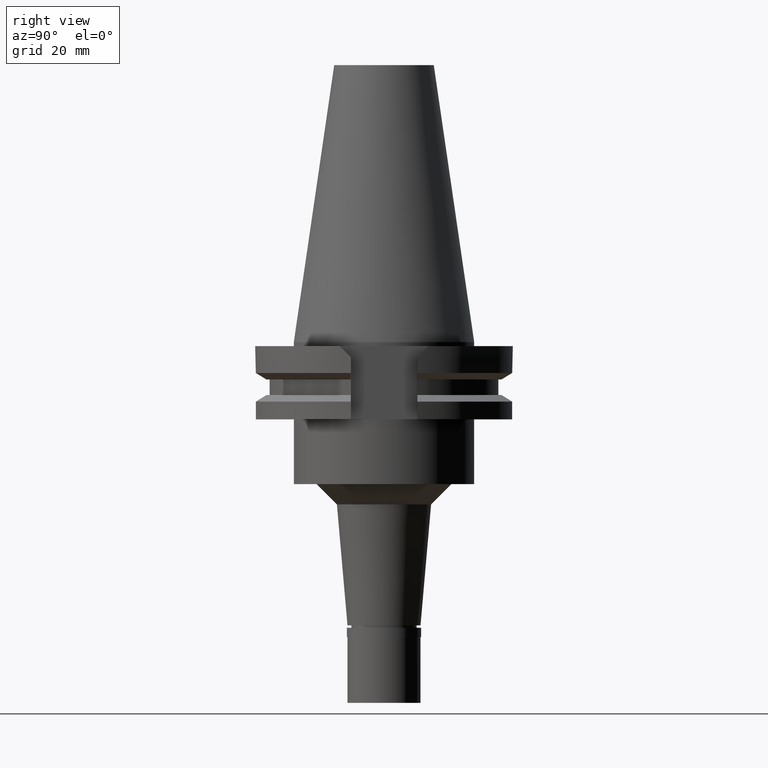
[diagram: clean part render]
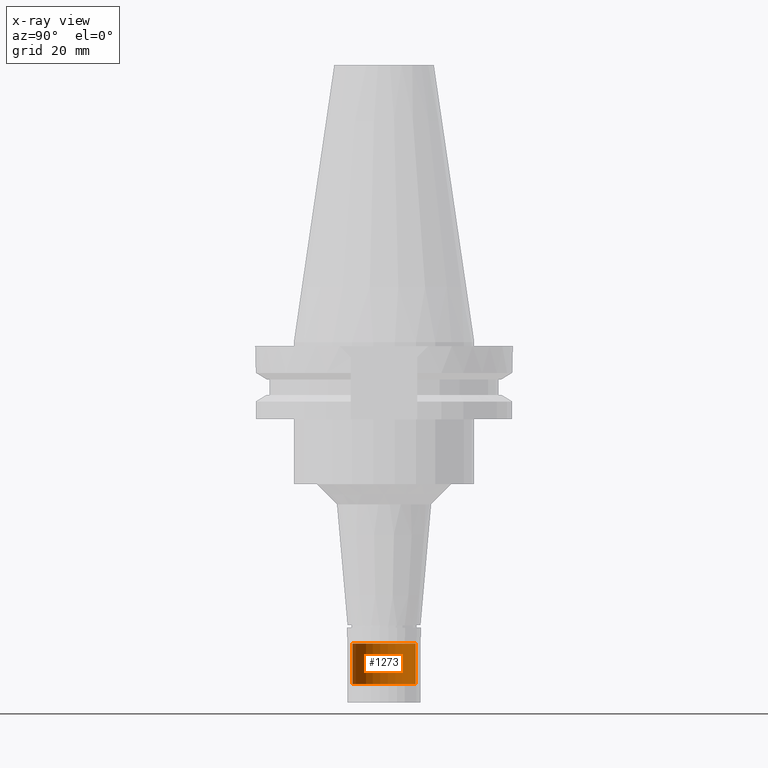
[diagram: x-ray — body ghosted, one internal face saturated and labeled with its STEP entity id]
A machine part, right view, then the same camera in x-ray: the body is ghosted and one INTERNAL B-rep face — a face not visible from any outside direction — is saturated and labeled: STEP entity #1273.
In plain terms, the highlighted cylindrical surface (edge-blend (fillet) strip) has radius 7.8 mm, axis along (0, 0, -1).
Its self-contained STEP definition (entity closure, byte-faithful):
#54 = DIRECTION ( 'NONE',  ( 0.0000000000000000000, -1.000000000000000000, 0.0000000000000000000 ) ) ;
#345 = EDGE_CURVE ( 'NONE', #1958, #1323, #2367, .T. ) ;
#425 = ORIENTED_EDGE ( 'NONE', *, *, #1432, .F. ) ;
#431 = CARTESIAN_POINT ( 'NONE',  ( 0.0000000000000000000, 7.799999999999999822, -74.30000000000001137 ) ) ;
#493 = ORIENTED_EDGE ( 'NONE', *, *, #650, .T. ) ;
#579 = DIRECTION ( 'NONE',  ( 0.0000000000000000000, 0.0000000000000000000, -1.000000000000000000 ) ) ;
#650 = EDGE_CURVE ( 'NONE', #949, #1094, #2679, .T. ) ;
#909 = DIRECTION ( 'NONE',  ( 0.0000000000000000000, 0.0000000000000000000, 1.000000000000000000 ) ) ;
#949 = VERTEX_POINT ( 'NONE', #2097 ) ;
#962 = AXIS2_PLACEMENT_3D ( 'NONE', #2633, #909, #3142 ) ;
#1094 = VERTEX_POINT ( 'NONE', #2857 ) ;
#1214 = CARTESIAN_POINT ( 'NONE',  ( 0.0000000000000000000, 2.153878174169999899E-14, 75.87749999999999773 ) ) ;
#1269 = LINE ( 'NONE', #3030, #1704 ) ;
#1273 = ADVANCED_FACE ( 'NONE', ( #2240 ), #1682, .T. ) ;
#1277 = AXIS2_PLACEMENT_3D ( 'NONE', #2996, #579, #54 ) ;
#1316 = EDGE_LOOP ( 'NONE', ( #3081, #425, #493, #2165 ) ) ;
#1323 = VERTEX_POINT ( 'NONE', #3167 ) ;
#1432 = EDGE_CURVE ( 'NONE', #949, #1323, #1269, .T. ) ;
#1457 = DIRECTION ( 'NONE',  ( 0.0000000000000000000, 0.0000000000000000000, -1.000000000000000000 ) ) ;
#1541 = CARTESIAN_POINT ( 'NONE',  ( 0.0000000000000000000, 7.799999999999999822, -84.29999999999999716 ) ) ;
#1682 = CYLINDRICAL_SURFACE ( 'NONE', #2937, 7.799999999999999822 ) ;
#1704 = VECTOR ( 'NONE', #2509, 1000.000000000000000 ) ;
#1958 = VERTEX_POINT ( 'NONE', #1541 ) ;
#2097 = CARTESIAN_POINT ( 'NONE',  ( 0.0000000000000000000, -7.799999999999999822, -74.30000000000001137 ) ) ;
#2165 = ORIENTED_EDGE ( 'NONE', *, *, #2605, .T. ) ;
#2218 = DIRECTION ( 'NONE',  ( 0.0000000000000000000, -1.000000000000000000, 0.0000000000000000000 ) ) ;
#2240 = FACE_OUTER_BOUND ( 'NONE', #1316, .T. ) ;
#2254 = VECTOR ( 'NONE', #3041, 1000.000000000000000 ) ;
#2367 = CIRCLE ( 'NONE', #962, 7.799999999999999822 ) ;
#2509 = DIRECTION ( 'NONE',  ( 0.0000000000000000000, 0.0000000000000000000, -1.000000000000000000 ) ) ;
#2605 = EDGE_CURVE ( 'NONE', #1094, #1958, #3134, .T. ) ;
#2633 = CARTESIAN_POINT ( 'NONE',  ( 0.0000000000000000000, 2.153878174169999899E-14, -84.29999999999999716 ) ) ;
#2679 = CIRCLE ( 'NONE', #1277, 7.799999999999999822 ) ;
#2857 = CARTESIAN_POINT ( 'NONE',  ( 0.0000000000000000000, 7.799999999999999822, -74.30000000000001137 ) ) ;
#2937 = AXIS2_PLACEMENT_3D ( 'NONE', #1214, #1457, #2218 ) ;
#2996 = CARTESIAN_POINT ( 'NONE',  ( 0.0000000000000000000, 2.153878174169999899E-14, -74.30000000000001137 ) ) ;
#3030 = CARTESIAN_POINT ( 'NONE',  ( 0.0000000000000000000, -7.799999999999999822, -74.30000000000001137 ) ) ;
#3041 = DIRECTION ( 'NONE',  ( 0.0000000000000000000, 0.0000000000000000000, -1.000000000000000000 ) ) ;
#3081 = ORIENTED_EDGE ( 'NONE', *, *, #345, .T. ) ;
#3134 = LINE ( 'NONE', #431, #2254 ) ;
#3142 = DIRECTION ( 'NONE',  ( 0.0000000000000000000, 1.000000000000000000, 0.0000000000000000000 ) ) ;
#3167 = CARTESIAN_POINT ( 'NONE',  ( 0.0000000000000000000, -7.799999999999999822, -84.29999999999999716 ) ) ;